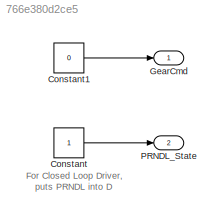
MODEL slx_766e380d2ce5
KIND model
CONFIG AbsTol = auto
CONFIG EnableMultiTasking = on
CONFIG FixedStep = 0.01
CONFIG MaxStep = auto
CONFIG MinStep = auto
CONFIG RelTol = 1e-3
CONFIG SampleTimeConstraint = Unconstrained
CONFIG Solver = FixedStepDiscrete
CONFIG SolverName = FixedStepDiscrete
CONFIG StartTime = 0.0
CONFIG StopTime = inf
BLOCK [Constant] Constant
  SampleTime = 0.01
BLOCK [Constant] Constant1
  SampleTime = 0.01
  Value = 0
BLOCK [Outport] GearCmd
  PortDimensions = 1
  SampleTime = [0.01,0]
  VectorParamsAs1DForOutWhenUnconnected = off
BLOCK [Outport] PRNDL_State
  Port = 2
  VectorParamsAs1DForOutWhenUnconnected = off
ANNOTATION (root): For Closed Loop Driver, puts PRNDL into D
LINE Constant1:1 -> GearCmd:1
LINE Constant:1 -> PRNDL_State:1
